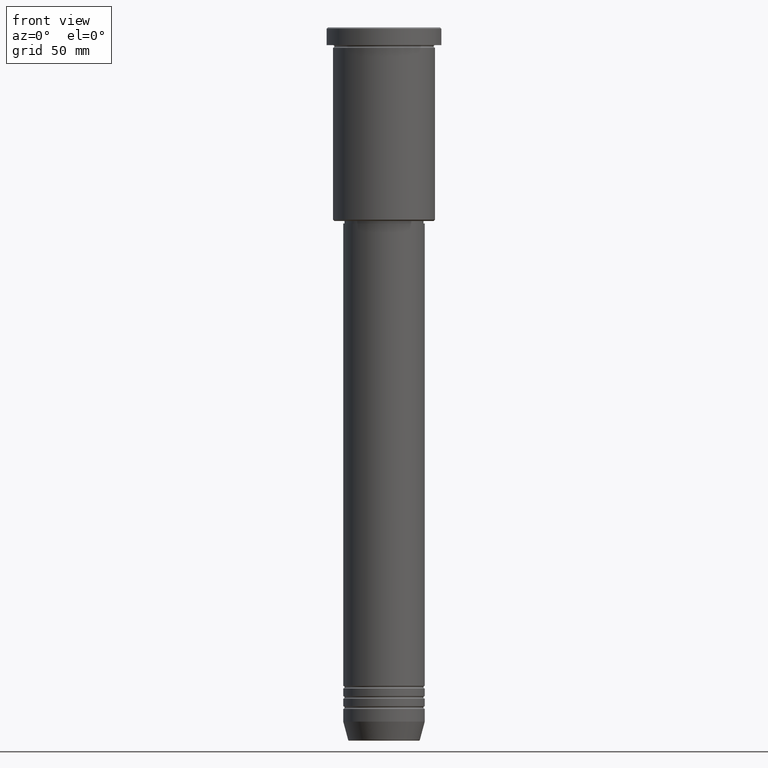
[diagram: clean part render]
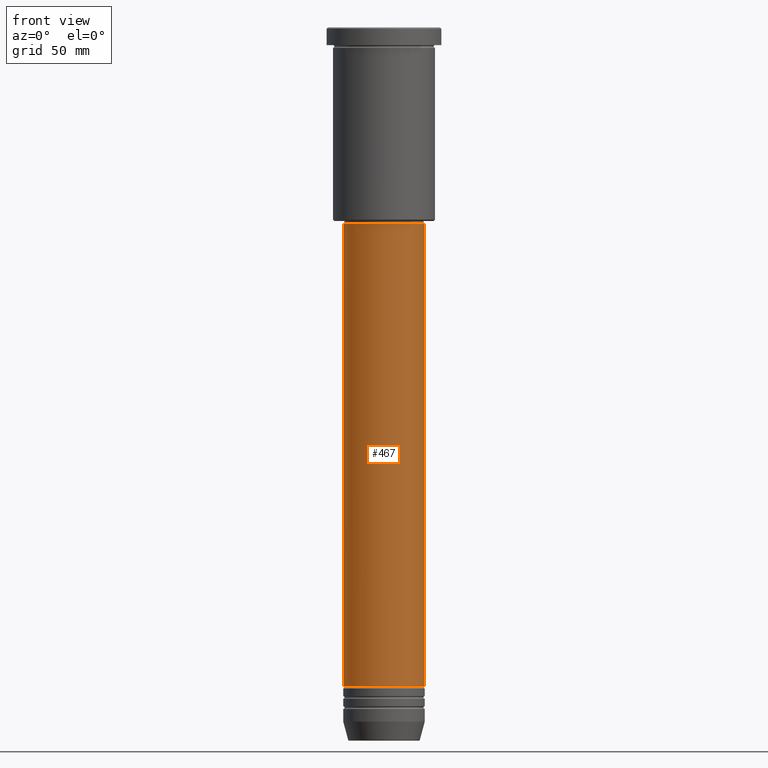
[diagram: same view with one face highlighted and labeled with its STEP entity id]
A machine part, front view. The second image highlights one B-rep face of the part: STEP entity #467.
In plain terms, the highlighted cylindrical surface (partial cylindrical patch) has radius 16 mm, axis along (-0, -0, 1).
Its self-contained STEP definition (entity closure, byte-faithful):
#13 = ORIENTED_EDGE ( 'NONE', *, *, #1023, .F. ) ;
#34 = EDGE_CURVE ( 'NONE', #391, #598, #493, .T. ) ;
#93 = CARTESIAN_POINT ( 'NONE',  ( 0.000000000000000000, 0.000000000000000000, -77.00000000000001421 ) ) ;
#95 = EDGE_CURVE ( 'NONE', #909, #825, #901, .T. ) ;
#177 = LINE ( 'NONE', #811, #400 ) ;
#351 = LINE ( 'NONE', #904, #900 ) ;
#380 = AXIS2_PLACEMENT_3D ( 'NONE', #606, #892, #618 ) ;
#391 = VERTEX_POINT ( 'NONE', #1042 ) ;
#400 = VECTOR ( 'NONE', #1158, 1000.000000000000000 ) ;
#423 = AXIS2_PLACEMENT_3D ( 'NONE', #93, #650, #638 ) ;
#428 = CARTESIAN_POINT ( 'NONE',  ( -16.00000000000000000, 1.959434878635765131E-15, -258.5000000000000000 ) ) ;
#437 = ORIENTED_EDGE ( 'NONE', *, *, #34, .F. ) ;
#467 = ADVANCED_FACE ( 'NONE', ( #800 ), #1051, .T. ) ;
#472 = EDGE_LOOP ( 'NONE', ( #13, #1181, #1077, #437 ) ) ;
#493 = CIRCLE ( 'NONE', #423, 16.00000000000000000 ) ;
#497 = CARTESIAN_POINT ( 'NONE',  ( 0.000000000000000000, 0.000000000000000000, -258.5000000000000000 ) ) ;
#570 = CARTESIAN_POINT ( 'NONE',  ( 16.00000000000000000, 0.000000000000000000, -77.00000000000001421 ) ) ;
#598 = VERTEX_POINT ( 'NONE', #570 ) ;
#606 = CARTESIAN_POINT ( 'NONE',  ( 0.000000000000000000, 0.000000000000000000, 0.000000000000000000 ) ) ;
#618 = DIRECTION ( 'NONE',  ( 1.000000000000000000, 0.000000000000000000, 0.000000000000000000 ) ) ;
#638 = DIRECTION ( 'NONE',  ( 1.000000000000000000, 0.000000000000000000, 0.000000000000000000 ) ) ;
#650 = DIRECTION ( 'NONE',  ( -0.000000000000000000, -0.000000000000000000, 1.000000000000000000 ) ) ;
#725 = DIRECTION ( 'NONE',  ( 1.000000000000000000, 0.000000000000000000, 0.000000000000000000 ) ) ;
#772 = AXIS2_PLACEMENT_3D ( 'NONE', #497, #1166, #725 ) ;
#800 = FACE_OUTER_BOUND ( 'NONE', #472, .T. ) ;
#811 = CARTESIAN_POINT ( 'NONE',  ( -16.00000000000000000, 1.959434878635765131E-15, 0.000000000000000000 ) ) ;
#825 = VERTEX_POINT ( 'NONE', #966 ) ;
#892 = DIRECTION ( 'NONE',  ( -0.000000000000000000, -0.000000000000000000, 1.000000000000000000 ) ) ;
#900 = VECTOR ( 'NONE', #1074, 1000.000000000000000 ) ;
#901 = CIRCLE ( 'NONE', #772, 16.00000000000000000 ) ;
#904 = CARTESIAN_POINT ( 'NONE',  ( 16.00000000000000000, 0.000000000000000000, 0.000000000000000000 ) ) ;
#909 = VERTEX_POINT ( 'NONE', #428 ) ;
#966 = CARTESIAN_POINT ( 'NONE',  ( 16.00000000000000000, 0.000000000000000000, -258.5000000000000000 ) ) ;
#973 = EDGE_CURVE ( 'NONE', #825, #598, #351, .T. ) ;
#1023 = EDGE_CURVE ( 'NONE', #909, #391, #177, .T. ) ;
#1042 = CARTESIAN_POINT ( 'NONE',  ( -16.00000000000000000, 1.959434878635765131E-15, -77.00000000000001421 ) ) ;
#1051 = CYLINDRICAL_SURFACE ( 'NONE', #380, 16.00000000000000000 ) ;
#1074 = DIRECTION ( 'NONE',  ( -0.000000000000000000, -0.000000000000000000, 1.000000000000000000 ) ) ;
#1077 = ORIENTED_EDGE ( 'NONE', *, *, #973, .T. ) ;
#1158 = DIRECTION ( 'NONE',  ( -0.000000000000000000, -0.000000000000000000, 1.000000000000000000 ) ) ;
#1166 = DIRECTION ( 'NONE',  ( -0.000000000000000000, -0.000000000000000000, 1.000000000000000000 ) ) ;
#1181 = ORIENTED_EDGE ( 'NONE', *, *, #95, .T. ) ;